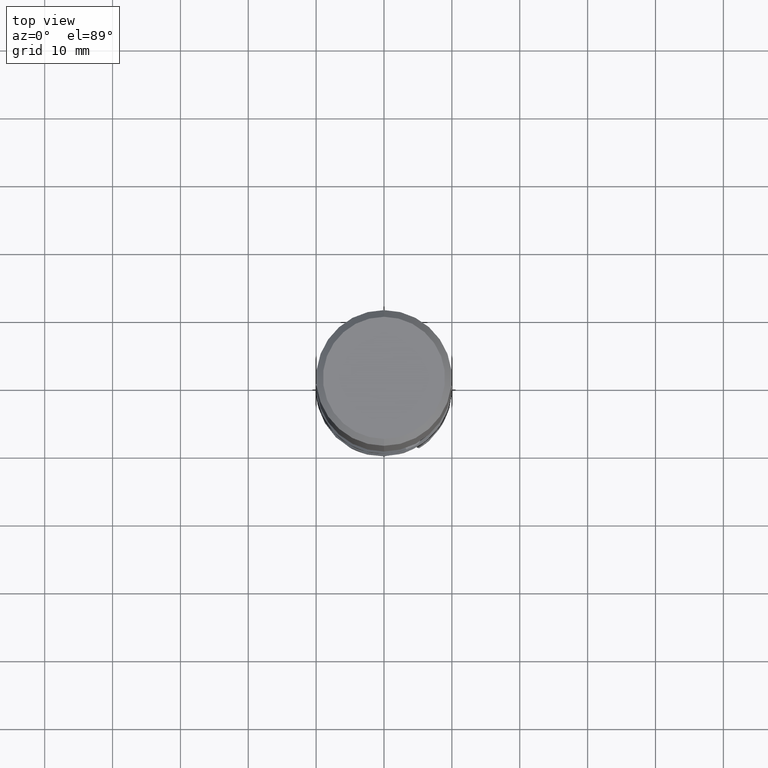
[diagram: clean part render]
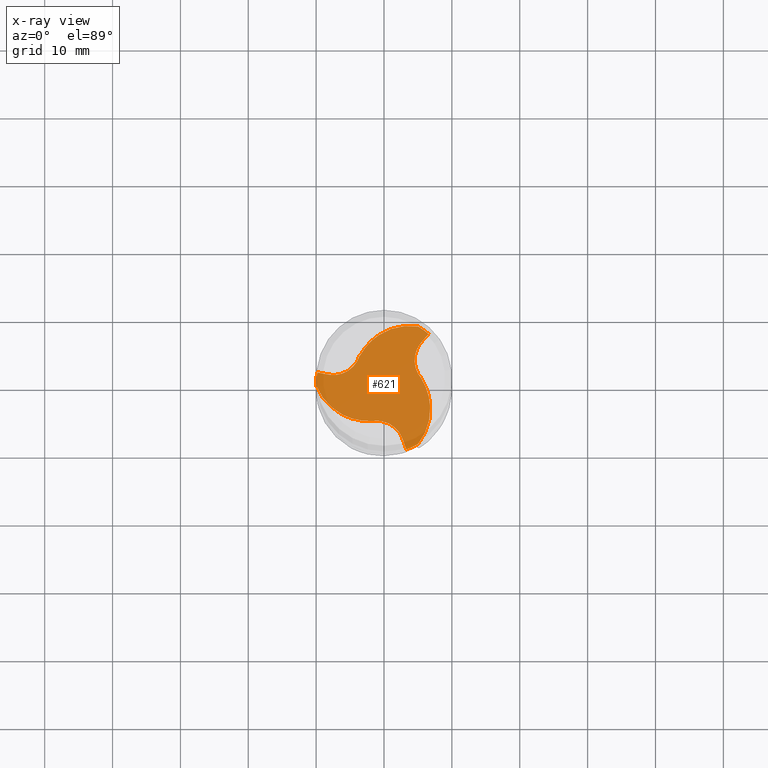
[diagram: x-ray — body ghosted, one internal face saturated and labeled with its STEP entity id]
A machine part, top view, then the same camera in x-ray: the body is ghosted and one INTERNAL B-rep face — a face not visible from any outside direction — is saturated and labeled: STEP entity #621.
In plain terms, the highlighted planar face has unit normal (-0, 0, 1).
Its self-contained STEP definition (entity closure, byte-faithful):
#471=EDGE_CURVE('',#1187,#537,#1329,.T.);
#515=EDGE_CURVE('',#1265,#537,#1376,.T.);
#527=VERTEX_POINT('',#1390);
#533=VERTEX_POINT('',#1397);
#537=VERTEX_POINT('',#1401);
#571=EDGE_CURVE('',#933,#639,#1437,.T.);
#585=VERTEX_POINT('',#1453);
#609=EDGE_CURVE('',#993,#677,#1479,.T.);
#621=ADVANCED_FACE('',(#1494),#1495,.T.);
#639=VERTEX_POINT('',#1515);
#677=VERTEX_POINT('',#1555);
#679=EDGE_CURVE('',#875,#533,#1557,.T.);
#681=EDGE_CURVE('',#957,#639,#1559,.T.);
#689=EDGE_CURVE('',#853,#733,#1567,.T.);
#695=EDGE_CURVE('',#527,#1107,#1574,.T.);
#705=EDGE_CURVE('',#875,#901,#1584,.T.);
#733=VERTEX_POINT('',#1615);
#751=VERTEX_POINT('',#1634);
#777=EDGE_CURVE('',#893,#1187,#1662,.T.);
#841=EDGE_CURVE('',#733,#893,#1739,.T.);
#853=VERTEX_POINT('',#1751);
#859=EDGE_CURVE('',#1265,#993,#1757,.T.);
#875=VERTEX_POINT('',#1775);
#879=EDGE_CURVE('',#1183,#751,#1779,.T.);
#893=VERTEX_POINT('',#1795);
#901=VERTEX_POINT('',#1803);
#921=EDGE_CURVE('',#751,#933,#1823,.T.);
#933=VERTEX_POINT('',#1835);
#947=VERTEX_POINT('',#1850);
#957=VERTEX_POINT('',#1862);
#981=EDGE_CURVE('',#957,#1033,#1888,.T.);
#993=VERTEX_POINT('',#1900);
#999=EDGE_CURVE('',#677,#1183,#1906,.T.);
#1009=EDGE_CURVE('',#585,#947,#1916,.T.);
#1033=VERTEX_POINT('',#1941);
#1107=VERTEX_POINT('',#2025);
#1115=EDGE_CURVE('',#1033,#527,#2034,.T.);
#1151=EDGE_CURVE('',#947,#533,#2074,.T.);
#1183=VERTEX_POINT('',#2107);
#1187=VERTEX_POINT('',#2112);
#1215=EDGE_CURVE('',#901,#853,#2143,.T.);
#1221=EDGE_CURVE('',#1107,#585,#2149,.T.);
#1265=VERTEX_POINT('',#2196);
#1329=B_SPLINE_CURVE_WITH_KNOTS('',3,(#2316,#2317,#2318,#2319),.UNSPECIFIED.,.F.,.F.,(4,4),(0.0,1.86574099658228),.UNSPECIFIED.);
#1376=CIRCLE('',#2606,9.9999);
#1390=CARTESIAN_POINT('',(5.59308994442417,0.809030959823448,-64.0));
#1397=CARTESIAN_POINT('',(6.54693000146895,7.55881654532413,-64.0));
#1401=CARTESIAN_POINT('',(-9.8195921515313,1.8903994254085,-64.0));
#1437=B_SPLINE_CURVE_WITH_KNOTS('',3,(#3198,#3199,#3200,#3201,#3202,#3203),.UNSPECIFIED.,.F.,.F.,(4,2,4),(0.0,1.01666660342828,2.03333320686932),.UNSPECIFIED.);
#1453=CARTESIAN_POINT('',(5.57321352852351,0.930613886379684,-64.0000000000142));
#1479=B_SPLINE_CURVE_WITH_KNOTS('',3,(#3362,#3363,#3364,#3365,#3366,#3367,#3368,#3369,#3370,#3371),.UNSPECIFIED.,.F.,.F.,(4,2,2,2,4),(0.0,3.22977012451254,6.45931074627802,8.40218728265527,10.3450094163586),.UNSPECIFIED.);
#1494=FACE_OUTER_BOUND('',#3785,.T.);
#1495=PLANE('',#3786);
#1515=CARTESIAN_POINT('',(3.27266215006238,-9.44921597073266,-64.0));
#1555=CARTESIAN_POINT('',(-2.09590360855684,-5.24827345743435,-64.0));
#1557=CIRCLE('',#4096,9.9999);
#1559=CIRCLE('',#4099,9.9999);
#1567=B_SPLINE_CURVE_WITH_KNOTS('',3,(#4157,#4158,#4159,#4160,#4161,#4162),.UNSPECIFIED.,.F.,.F.,(4,2,4),(0.0,0.0893540159691928,0.17870814020248),.UNSPECIFIED.);
#1574=B_SPLINE_CURVE_WITH_KNOTS('',3,(#4170,#4171,#4172,#4173,#4174,#4175),.UNSPECIFIED.,.F.,.F.,(4,2,4),(0.0,0.0906330425985399,0.181266222590356),.UNSPECIFIED.);
#1584=B_SPLINE_CURVE_WITH_KNOTS('',3,(#4189,#4190,#4191,#4192,#4193,#4194,#4195,#4196,#4197,#4198),.UNSPECIFIED.,.F.,.F.,(4,2,2,2,4),(0.0,3.22986351059494,6.45946003039667,8.89953402413643,11.3395172599836),.UNSPECIFIED.);
#1615=CARTESIAN_POINT('',(-3.53465621132542,4.40900645612513,-64.0));
#1634=CARTESIAN_POINT('',(-1.98067149754237,-5.29185143960632,-64.0000000000142));
#1662=B_SPLINE_CURVE_WITH_KNOTS('',3,(#4691,#4692,#4693,#4694,#4695,#4696,#4697,#4698,#4699,#4700),.UNSPECIFIED.,.F.,.F.,(4,2,2,2,4),(0.0,1.58917941689797,3.1782583156222,4.54299936996219,5.9077090378205),.UNSPECIFIED.);
#1739=B_SPLINE_CURVE_WITH_KNOTS('',3,(#5847,#5848,#5849,#5850,#5851,#5852),.UNSPECIFIED.,.F.,.F.,(4,2,4),(0.0,0.0893540159691928,0.17870814020248),.UNSPECIFIED.);
#1751=CARTESIAN_POINT('',(-3.49718633586731,4.43924249761088,-64.0));
#1757=B_SPLINE_CURVE_WITH_KNOTS('',3,(#5986,#5987,#5988,#5989,#5990,#5991,#5992,#5993,#5994,#5995),.UNSPECIFIED.,.F.,.F.,(4,2,2,2,4),(0.0,3.22977012451254,6.45931074627802,8.40218728265527,10.3450094163586),.UNSPECIFIED.);
#1775=CARTESIAN_POINT('',(4.9874425048065,8.66737660836593,-64.0));
#1779=B_SPLINE_CURVE_WITH_KNOTS('',3,(#6589,#6590,#6591,#6592,#6593,#6594),.UNSPECIFIED.,.F.,.F.,(4,2,4),(0.0,0.0906330425269509,0.181266222447774),.UNSPECIFIED.);
#1795=CARTESIAN_POINT('',(-3.59254203098114,4.36123755322661,-64.0000000000142));
#1803=CARTESIAN_POINT('',(-2.81208900009983,5.49808554306712,-64.0));
#1823=B_SPLINE_CURVE_WITH_KNOTS('',3,(#6974,#6975,#6976,#6977,#6978,#6979,#6980,#6981,#6982,#6983),.UNSPECIFIED.,.F.,.F.,(4,2,2,2,4),(0.0,1.589179416898,3.1782583156224,4.54299936996206,5.90770903782028),.UNSPECIFIED.);
#1835=CARTESIAN_POINT('',(2.7300086189695,-7.91065309437765,-64.0000000000002));
#1850=CARTESIAN_POINT('',(5.48582223077228,6.31958336376688,-64.0000000000002));
#1862=CARTESIAN_POINT('',(5.01244707460865,-8.6529402132597,-64.0));
#1888=B_SPLINE_CURVE_WITH_KNOTS('',3,(#7691,#7692,#7693,#7694,#7695,#7696,#7697,#7698,#7699,#7700),.UNSPECIFIED.,.F.,.F.,(4,2,2,2,4),(0.0,3.22986351059497,6.45946003039672,8.90170572673343,11.3438605196778),.UNSPECIFIED.);
#1900=CARTESIAN_POINT('',(-3.35543725163365,-5.18438328342402,-64.0));
#1906=B_SPLINE_CURVE_WITH_KNOTS('',3,(#7747,#7748,#7749,#7750,#7751,#7752),.UNSPECIFIED.,.F.,.F.,(4,2,4),(0.0,0.0906330425269509,0.181266222447774),.UNSPECIFIED.);
#1916=B_SPLINE_CURVE_WITH_KNOTS('',3,(#7767,#7768,#7769,#7770,#7771,#7772,#7773,#7774,#7775,#7776),.UNSPECIFIED.,.F.,.F.,(4,2,2,2,4),(0.0,1.58917941689798,3.17825831562223,4.54299936996215,5.90770903782028),.UNSPECIFIED.);
#1941=CARTESIAN_POINT('',(6.16752625204502,-0.313702258595719,-64.0));
#2025=CARTESIAN_POINT('',(5.58563970212482,0.856598844539112,-64.0));
#2034=B_SPLINE_CURVE_WITH_KNOTS('',3,(#8712,#8713,#8714,#8715,#8716,#8717,#8718,#8719,#8720,#8721),.UNSPECIFIED.,.F.,.F.,(4,2,2,2,4),(0.0,3.22986351059497,6.45946003039672,8.90170572673343,11.3438605196778),.UNSPECIFIED.);
#2074=B_SPLINE_CURVE_WITH_KNOTS('',3,(#9194,#9195,#9196,#9197,#9198,#9199),.UNSPECIFIED.,.F.,.F.,(4,2,4),(0.0,1.01666660342828,2.03333320686931),.UNSPECIFIED.);
#2107=CARTESIAN_POINT('',(-2.05098349082188,-5.26560530070317,-64.0));
#2112=CARTESIAN_POINT('',(-8.21583084974177,1.59106973061077,-64.0000000000002));
#2143=B_SPLINE_CURVE_WITH_KNOTS('',3,(#9819,#9820,#9821,#9822,#9823,#9824,#9825,#9826,#9827,#9828),.UNSPECIFIED.,.F.,.F.,(4,2,2,2,4),(0.0,3.22986351059494,6.45946003039667,8.89953402413643,11.3395172599836),.UNSPECIFIED.);
#2149=B_SPLINE_CURVE_WITH_KNOTS('',3,(#9835,#9836,#9837,#9838,#9839,#9840),.UNSPECIFIED.,.F.,.F.,(4,2,4),(0.0,0.0906330425985399,0.181266222590356),.UNSPECIFIED.);
#2196=CARTESIAN_POINT('',(-9.99988957941516,-0.0144363951062529,-64.0));
#2316=CARTESIAN_POINT('',(-8.21583084976017,1.59106973051216,-64.0));
#2317=CARTESIAN_POINT('',(-8.82718747143766,1.70517358014419,-64.0));
#2318=CARTESIAN_POINT('',(-9.43854385485357,1.81927870636452,-64.0));
#2319=CARTESIAN_POINT('',(-10.0499,1.93338510917107,-64.0));
#2606=AXIS2_PLACEMENT_3D('',#10152,#10153,#10154);
#3198=CARTESIAN_POINT('',(2.73000861906407,-7.91065309434429,-64.0));
#3199=CARTESIAN_POINT('',(2.84273013667982,-8.23024584174566,-64.0));
#3200=CARTESIAN_POINT('',(2.95545129064844,-8.54983871740693,-64.0));
#3201=CARTESIAN_POINT('',(3.18089287129208,-9.18902472525072,-64.0));
#3202=CARTESIAN_POINT('',(3.29361329796726,-9.50861785743365,-64.0));
#3203=CARTESIAN_POINT('',(3.40633336099475,-9.82821111787435,-64.0));
#3362=CARTESIAN_POINT('',(-10.0499,0.115683578278104,-64.0));
#3363=CARTESIAN_POINT('',(-9.67215230436496,-0.892459663482905,-64.0));
#3364=CARTESIAN_POINT('',(-9.10110992881525,-1.81718208867438,-64.0));
#3365=CARTESIAN_POINT('',(-7.63674330286853,-3.39562313974872,-64.0));
#3366=CARTESIAN_POINT('',(-6.75744629672321,-4.03426533839062,-64.0));
#3367=CARTESIAN_POINT('',(-5.19276021661203,-4.75842380914874,-64.0));
#3368=CARTESIAN_POINT('',(-4.57509802166371,-4.96043343226245,-64.0));
#3369=CARTESIAN_POINT('',(-3.30535742703868,-5.21613484985493,-64.0));
#3370=CARTESIAN_POINT('',(-2.65766784499353,-5.26894718883218,-64.0));
#3371=CARTESIAN_POINT('',(-2.01048065764231,-5.24563898275676,-64.0));
#3785=EDGE_LOOP('',(#10289,#10290,#10291,#10292,#10293,#10294,#10295,#10296,#10297,#10298,#10299,#10300,#10301,#10302,#10303,#10304,#10305,#10306,#10307,#10308,#10309));
#3786=AXIS2_PLACEMENT_3D('',#10310,#10311,#10312);
#4096=AXIS2_PLACEMENT_3D('',#10350,#10351,#10352);
#4099=AXIS2_PLACEMENT_3D('',#10353,#10354,#10355);
#4157=CARTESIAN_POINT('',(-3.453668853612,4.47370001485642,-64.0));
#4158=CARTESIAN_POINT('',(-3.47711092715809,4.45532623262751,-64.0));
#4159=CARTESIAN_POINT('',(-3.50040637860147,4.4367661482775,-63.9999999994793));
#4160=CARTESIAN_POINT('',(-3.54669963801857,4.39927687996045,-63.9999999994793));
#4161=CARTESIAN_POINT('',(-3.56969671216023,4.38034828952316,-64.0));
#4162=CARTESIAN_POINT('',(-3.59254203099374,4.36123755321618,-64.0));
#4170=CARTESIAN_POINT('',(5.60153166047584,0.751582310383038,-64.0));
#4171=CARTESIAN_POINT('',(5.59729417455171,0.781494667227761,-64.0));
#4172=CARTESIAN_POINT('',(5.59281525453803,0.811372324464613,-63.9999999994568));
#4173=CARTESIAN_POINT('',(5.58337541492804,0.871052442979116,-63.9999999994568));
#4174=CARTESIAN_POINT('',(5.57841465146062,0.900853932580634,-63.9999994484681));
#4175=CARTESIAN_POINT('',(5.57321347515063,0.930614201054026,-63.9999994484681));
#4189=CARTESIAN_POINT('',(6.09391311475008,8.42365911645158,-64.0));
#4190=CARTESIAN_POINT('',(5.0608339545354,8.72674424120915,-64.0));
#4191=CARTESIAN_POINT('',(3.97843525373142,8.82515361205992,-64.0));
#4192=CARTESIAN_POINT('',(1.83692942871722,8.60152069684657,-64.0));
#4193=CARTESIAN_POINT('',(0.798299623470999,8.28165146227605,-64.0));
#4194=CARTESIAN_POINT('',(-0.866117265947185,7.38644786098299,-64.0));
#4195=CARTESIAN_POINT('',(-1.52167456199763,6.89756761046032,-64.0));
#4196=CARTESIAN_POINT('',(-2.66882435685572,5.74424816059353,-64.0));
#4197=CARTESIAN_POINT('',(-3.15416698174052,5.08610519517531,-64.0));
#4198=CARTESIAN_POINT('',(-3.53559140433677,4.36776271819194,-64.0));
#4691=CARTESIAN_POINT('',(-3.59254203108909,4.36123755324637,-64.0));
#4692=CARTESIAN_POINT('',(-3.7525277414354,3.85624774350792,-64.0));
#4693=CARTESIAN_POINT('',(-4.00962105456489,3.38732960926104,-64.0));
#4694=CARTESIAN_POINT('',(-4.6890572202874,2.57447382818788,-64.0));
#4695=CARTESIAN_POINT('',(-5.10489901819741,2.23829356780164,-64.0));
#4696=CARTESIAN_POINT('',(-5.97589642504122,1.77915563022245,-64.0));
#4697=CARTESIAN_POINT('',(-6.41107263058051,1.6360341536291,-64.0));
#4698=CARTESIAN_POINT('',(-7.31062456257306,1.49978136295992,-64.0));
#4699=CARTESIAN_POINT('',(-7.76865245964521,1.50760817320377,-64.0));
#4700=CARTESIAN_POINT('',(-8.21583084974182,1.5910697306105,-64.0));
#5847=CARTESIAN_POINT('',(-3.453668853612,4.47370001485642,-64.0));
#5848=CARTESIAN_POINT('',(-3.47711092715809,4.45532623262751,-64.0));
#5849=CARTESIAN_POINT('',(-3.50040637860147,4.4367661482775,-63.9999999994793));
#5850=CARTESIAN_POINT('',(-3.54669963801857,4.39927687996045,-63.9999999994793));
#5851=CARTESIAN_POINT('',(-3.56969671216023,4.38034828952316,-64.0));
#5852=CARTESIAN_POINT('',(-3.59254203099374,4.36123755321618,-64.0));
#5986=CARTESIAN_POINT('',(-10.0499,0.115683578278104,-64.0));
#5987=CARTESIAN_POINT('',(-9.67215230436496,-0.892459663482905,-64.0));
#5988=CARTESIAN_POINT('',(-9.10110992881525,-1.81718208867438,-64.0));
#5989=CARTESIAN_POINT('',(-7.63674330286853,-3.39562313974872,-64.0));
#5990=CARTESIAN_POINT('',(-6.75744629672321,-4.03426533839062,-64.0));
#5991=CARTESIAN_POINT('',(-5.19276021661203,-4.75842380914874,-64.0));
#5992=CARTESIAN_POINT('',(-4.57509802166371,-4.96043343226245,-64.0));
#5993=CARTESIAN_POINT('',(-3.30535742703868,-5.21613484985493,-64.0));
#5994=CARTESIAN_POINT('',(-2.65766784499353,-5.26894718883218,-64.0));
#5995=CARTESIAN_POINT('',(-2.01048065764231,-5.24563898275676,-64.0));
#6589=CARTESIAN_POINT('',(-2.14987645627778,-5.22685987332016,-64.0));
#6590=CARTESIAN_POINT('',(-2.12185285242296,-5.23814628127441,-64.0));
#6591=CARTESIAN_POINT('',(-2.09373858226544,-5.24920625137019,-63.9999999994568));
#6592=CARTESIAN_POINT('',(-2.03733416377074,-5.27087116969954,-63.9999999994568));
#6593=CARTESIAN_POINT('',(-2.00904493499391,-5.28147576730674,-63.9999994484681));
#6594=CARTESIAN_POINT('',(-1.98067119833996,-5.29185155072121,-63.9999994484681));
#6974=CARTESIAN_POINT('',(-1.98067149750551,-5.29185143970967,-64.0));
#6975=CARTESIAN_POINT('',(-1.46334463844658,-5.17790822424286,-64.0));
#6976=CARTESIAN_POINT('',(-0.928702965328825,-5.16609849743266,-64.0));
#6977=CARTESIAN_POINT('',(0.114968873554869,-5.34807958666168,-64.0));
#6978=CARTESIAN_POINT('',(0.614030418255183,-5.54011901741404,-64.0));
#6979=CARTESIAN_POINT('',(1.44715423946167,-6.06485592958143,-64.0));
#6980=CARTESIAN_POINT('',(1.78868917678843,-6.37016884040432,-64.0));
#6981=CARTESIAN_POINT('',(2.35646352084092,-7.08107727019886,-64.0));
#6982=CARTESIAN_POINT('',(2.5786992528751,-7.48165446982719,-64.0));
#6983=CARTESIAN_POINT('',(2.73000861896974,-7.91065309437756,-64.0));
#7691=CARTESIAN_POINT('',(4.24814623029243,-9.4893131240545,-64.0));
#7692=CARTESIAN_POINT('',(5.02716522794901,-8.74618288956707,-64.0));
#7693=CARTESIAN_POINT('',(5.65358959347817,-7.85800280307296,-64.0));
#7694=CARTESIAN_POINT('',(6.53067072028811,-5.89158789865172,-64.0));
#7695=CARTESIAN_POINT('',(6.77297073988409,-4.83217348489557,-64.0));
#7696=CARTESIAN_POINT('',(6.8299319342956,-2.94242080447929,-64.0));
#7697=CARTESIAN_POINT('',(6.73413566328827,-2.1295332573613,-64.0));
#7698=CARTESIAN_POINT('',(6.30811759197578,-0.558126508230556,-64.0));
#7699=CARTESIAN_POINT('',(5.98023202031748,0.191809740080986,-64.0));
#7700=CARTESIAN_POINT('',(5.54809694685604,0.881692168225575,-64.0));
#7747=CARTESIAN_POINT('',(-2.14987645627778,-5.22685987332016,-64.0));
#7748=CARTESIAN_POINT('',(-2.12185285242296,-5.23814628127441,-64.0));
#7749=CARTESIAN_POINT('',(-2.09373858226544,-5.24920625137019,-63.9999999994568));
#7750=CARTESIAN_POINT('',(-2.03733416377074,-5.27087116969954,-63.9999999994568));
#7751=CARTESIAN_POINT('',(-2.00904493499391,-5.28147576730674,-63.9999994484681));
#7752=CARTESIAN_POINT('',(-1.98067119833996,-5.29185155072121,-63.9999994484681));
#7767=CARTESIAN_POINT('',(5.57321352859459,0.930613886463289,-64.0));
#7768=CARTESIAN_POINT('',(5.21587237988198,1.32166048073492,-64.0));
#7769=CARTESIAN_POINT('',(4.93832401989372,1.77876888817162,-64.0));
#7770=CARTESIAN_POINT('',(4.57408834673259,2.77360575847378,-64.0));
#7771=CARTESIAN_POINT('',(4.49086859994225,3.30182544961237,-64.0));
#7772=CARTESIAN_POINT('',(4.52874218557937,4.28570029935903,-64.0));
#7773=CARTESIAN_POINT('',(4.62238345379204,4.73413468677527,-64.0));
#7774=CARTESIAN_POINT('',(4.95416104173227,5.58129590723879,-64.0));
#7775=CARTESIAN_POINT('',(5.18995320677013,5.97404629662331,-64.0));
#7776=CARTESIAN_POINT('',(5.48582223077208,6.31958336376705,-64.0));
#8712=CARTESIAN_POINT('',(4.24814623029243,-9.4893131240545,-64.0));
#8713=CARTESIAN_POINT('',(5.02716522794901,-8.74618288956707,-64.0));
#8714=CARTESIAN_POINT('',(5.65358959347817,-7.85800280307296,-64.0));
#8715=CARTESIAN_POINT('',(6.53067072028811,-5.89158789865172,-64.0));
#8716=CARTESIAN_POINT('',(6.77297073988409,-4.83217348489557,-64.0));
#8717=CARTESIAN_POINT('',(6.8299319342956,-2.94242080447929,-64.0));
#8718=CARTESIAN_POINT('',(6.73413566328827,-2.1295332573613,-64.0));
#8719=CARTESIAN_POINT('',(6.30811759197578,-0.558126508230556,-64.0));
#8720=CARTESIAN_POINT('',(5.98023202031748,0.191809740080986,-64.0));
#8721=CARTESIAN_POINT('',(5.54809694685604,0.881692168225575,-64.0));
#9194=CARTESIAN_POINT('',(5.48582223069611,6.3195833638321,-64.0));
#9195=CARTESIAN_POINT('',(5.70623691000308,6.57699943534116,-64.0));
#9196=CARTESIAN_POINT('',(5.92665188220996,6.8344152560525,-64.0));
#9197=CARTESIAN_POINT('',(6.36748241242442,7.34924639588111,-64.0));
#9198=CARTESIAN_POINT('',(6.58789797043229,7.60666171499871,-64.0));
#9199=CARTESIAN_POINT('',(6.80831382133849,7.86407678331704,-64.0));
#9819=CARTESIAN_POINT('',(6.09391311475008,8.42365911645158,-64.0));
#9820=CARTESIAN_POINT('',(5.0608339545354,8.72674424120915,-64.0));
#9821=CARTESIAN_POINT('',(3.97843525373142,8.82515361205992,-64.0));
#9822=CARTESIAN_POINT('',(1.83692942871722,8.60152069684657,-64.0));
#9823=CARTESIAN_POINT('',(0.798299623470999,8.28165146227605,-64.0));
#9824=CARTESIAN_POINT('',(-0.866117265947185,7.38644786098299,-64.0));
#9825=CARTESIAN_POINT('',(-1.52167456199763,6.89756761046032,-64.0));
#9826=CARTESIAN_POINT('',(-2.66882435685572,5.74424816059353,-64.0));
#9827=CARTESIAN_POINT('',(-3.15416698174052,5.08610519517531,-64.0));
#9828=CARTESIAN_POINT('',(-3.53559140433677,4.36776271819194,-64.0));
#9835=CARTESIAN_POINT('',(5.60153166047584,0.751582310383038,-64.0));
#9836=CARTESIAN_POINT('',(5.59729417455171,0.781494667227761,-64.0));
#9837=CARTESIAN_POINT('',(5.59281525453803,0.811372324464613,-63.9999999994568));
#9838=CARTESIAN_POINT('',(5.58337541492804,0.871052442979116,-63.9999999994568));
#9839=CARTESIAN_POINT('',(5.57841465146062,0.900853932580634,-63.9999994484681));
#9840=CARTESIAN_POINT('',(5.57321347515063,0.930614201054026,-63.9999994484681));
#10152=CARTESIAN_POINT('',(0.0,0.0,-64.0));
#10153=DIRECTION('',(0.0,0.0,-1.0));
#10154=DIRECTION('',(0.0,1.0,0.0));
#10289=ORIENTED_EDGE('',*,*,#1221,.T.);
#10290=ORIENTED_EDGE('',*,*,#1009,.T.);
#10291=ORIENTED_EDGE('',*,*,#1151,.T.);
#10292=ORIENTED_EDGE('',*,*,#679,.F.);
#10293=ORIENTED_EDGE('',*,*,#705,.T.);
#10294=ORIENTED_EDGE('',*,*,#1215,.T.);
#10295=ORIENTED_EDGE('',*,*,#689,.T.);
#10296=ORIENTED_EDGE('',*,*,#841,.T.);
#10297=ORIENTED_EDGE('',*,*,#777,.T.);
#10298=ORIENTED_EDGE('',*,*,#471,.T.);
#10299=ORIENTED_EDGE('',*,*,#515,.F.);
#10300=ORIENTED_EDGE('',*,*,#859,.T.);
#10301=ORIENTED_EDGE('',*,*,#609,.T.);
#10302=ORIENTED_EDGE('',*,*,#999,.T.);
#10303=ORIENTED_EDGE('',*,*,#879,.T.);
#10304=ORIENTED_EDGE('',*,*,#921,.T.);
#10305=ORIENTED_EDGE('',*,*,#571,.T.);
#10306=ORIENTED_EDGE('',*,*,#681,.F.);
#10307=ORIENTED_EDGE('',*,*,#981,.T.);
#10308=ORIENTED_EDGE('',*,*,#1115,.T.);
#10309=ORIENTED_EDGE('',*,*,#695,.T.);
#10310=CARTESIAN_POINT('',(0.0,4.99995,-64.0));
#10311=DIRECTION('',(-0.0,0.0,1.0));
#10312=DIRECTION('',(0.0,-1.0,0.0));
#10350=CARTESIAN_POINT('',(0.0,0.0,-64.0));
#10351=DIRECTION('',(0.0,0.0,-1.0));
#10352=DIRECTION('',(0.0,1.0,0.0));
#10353=CARTESIAN_POINT('',(0.0,0.0,-64.0));
#10354=DIRECTION('',(0.0,0.0,-1.0));
#10355=DIRECTION('',(0.0,1.0,0.0));